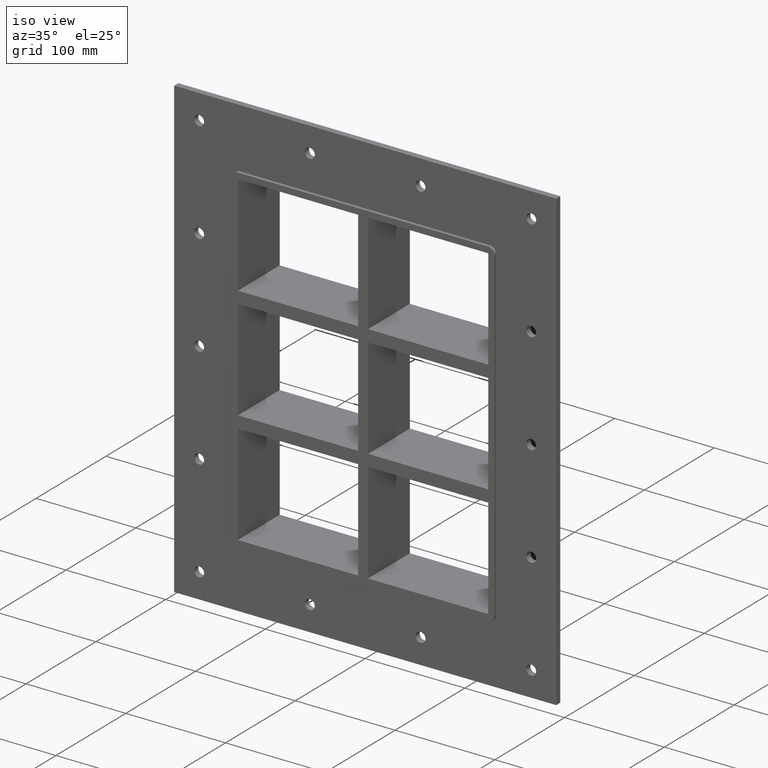
[diagram: clean part render]
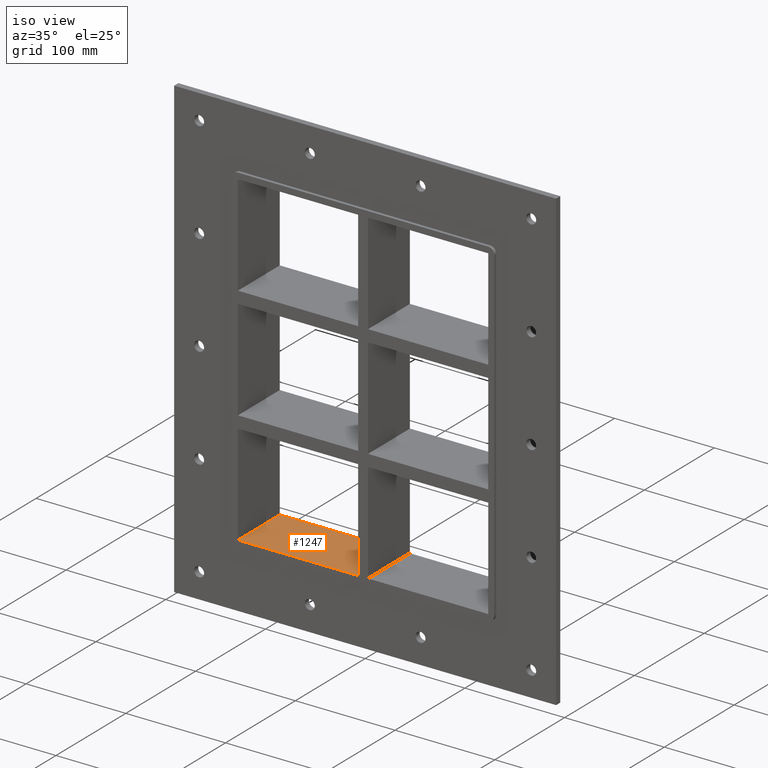
[diagram: same view with one face highlighted and labeled with its STEP entity id]
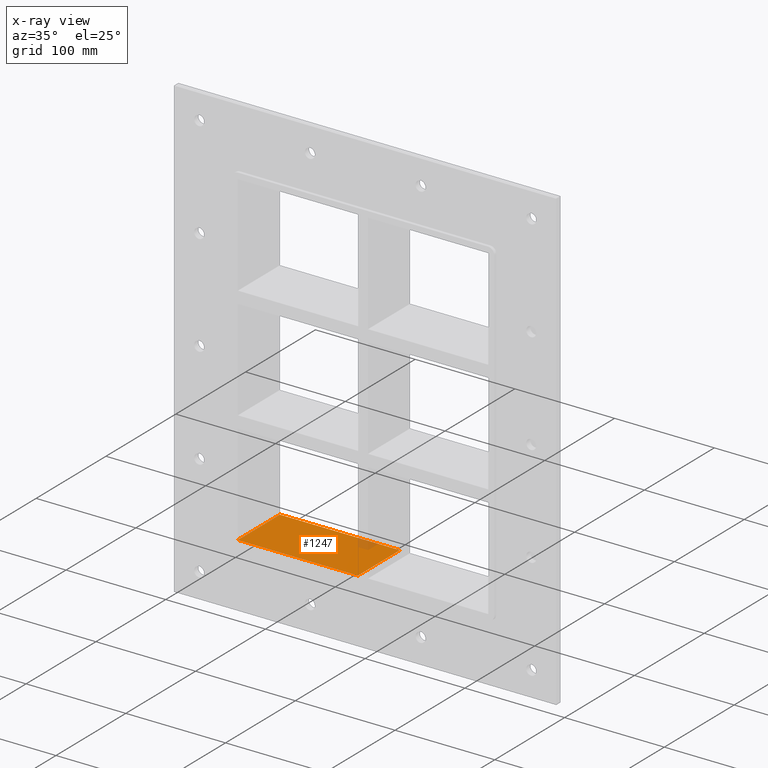
[diagram: x-ray of the same camera — body ghosted, the highlighted face saturated]
A machine part, iso view. The second image highlights one B-rep face of the part: STEP entity #1247.
The next image is the same camera in x-ray: the body ghosted, the highlighted face saturated — about 3% of this face is hidden behind the body in this view.
In plain terms, the highlighted planar face has unit normal (0, 0, -1).
Its self-contained STEP definition (entity closure, byte-faithful):
#1115=CARTESIAN_POINT('',(-125.49999999999997,57.0,-163.5));
#1116=VERTEX_POINT('',#1115);
#1123=CARTESIAN_POINT('',(-5.000000000001261,57.0,-163.5));
#1124=VERTEX_POINT('',#1123);
#1125=CARTESIAN_POINT('',(-125.49999999999994,57.0,-163.5));
#1126=DIRECTION('',(1.0,0.0,0.0));
#1127=VECTOR('',#1126,120.49999999999869);
#1128=LINE('',#1125,#1127);
#1129=EDGE_CURVE('',#1116,#1124,#1128,.T.);
#1183=CARTESIAN_POINT('',(-5.000000000001261,-3.0,-163.5));
#1184=VERTEX_POINT('',#1183);
#1185=CARTESIAN_POINT('',(-5.000000000001261,-3.0,-163.5));
#1186=DIRECTION('',(0.0,1.0,0.0));
#1187=VECTOR('',#1186,60.000000000000007);
#1188=LINE('',#1185,#1187);
#1189=EDGE_CURVE('',#1184,#1124,#1188,.T.);
#1224=CARTESIAN_POINT('',(125.49999999999997,0.0,-163.5));
#1225=DIRECTION('',(0.0,0.0,-1.0));
#1226=DIRECTION('',(-1.0,0.0,0.0));
#1227=AXIS2_PLACEMENT_3D('',#1224,#1225,#1226);
#1228=PLANE('',#1227);
#1229=ORIENTED_EDGE('',*,*,#1189,.T.);
#1230=ORIENTED_EDGE('',*,*,#1129,.F.);
#1231=CARTESIAN_POINT('',(-125.49999999999997,-3.0,-163.5));
#1232=VERTEX_POINT('',#1231);
#1233=CARTESIAN_POINT('',(-125.49999999999999,-3.0,-163.5));
#1234=DIRECTION('',(0.0,1.0,0.0));
#1235=VECTOR('',#1234,60.0);
#1236=LINE('',#1233,#1235);
#1237=EDGE_CURVE('',#1232,#1116,#1236,.T.);
#1238=ORIENTED_EDGE('',*,*,#1237,.F.);
#1239=CARTESIAN_POINT('',(-5.000000000001258,-3.0,-163.5));
#1240=DIRECTION('',(-1.0,0.0,0.0));
#1241=VECTOR('',#1240,120.49999999999869);
#1242=LINE('',#1239,#1241);
#1243=EDGE_CURVE('',#1184,#1232,#1242,.T.);
#1244=ORIENTED_EDGE('',*,*,#1243,.F.);
#1245=EDGE_LOOP('',(#1229,#1230,#1238,#1244));
#1246=FACE_OUTER_BOUND('',#1245,.T.);
#1247=ADVANCED_FACE('',(#1246),#1228,.F.);